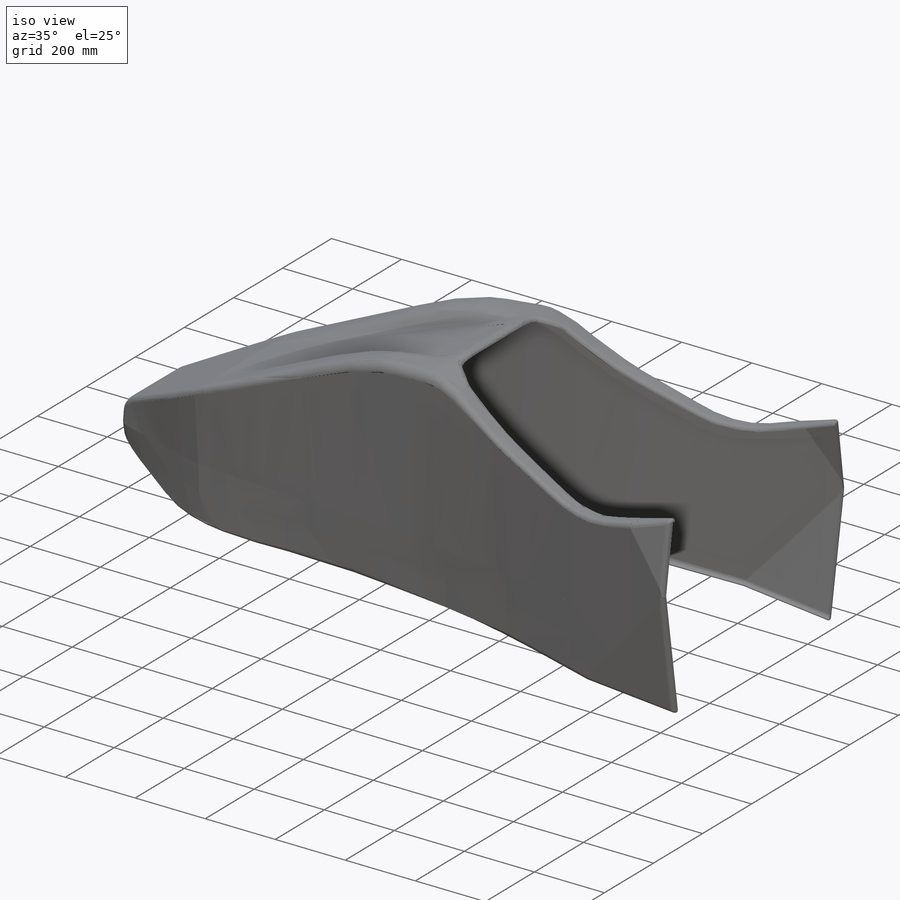
[diagram: iso view]
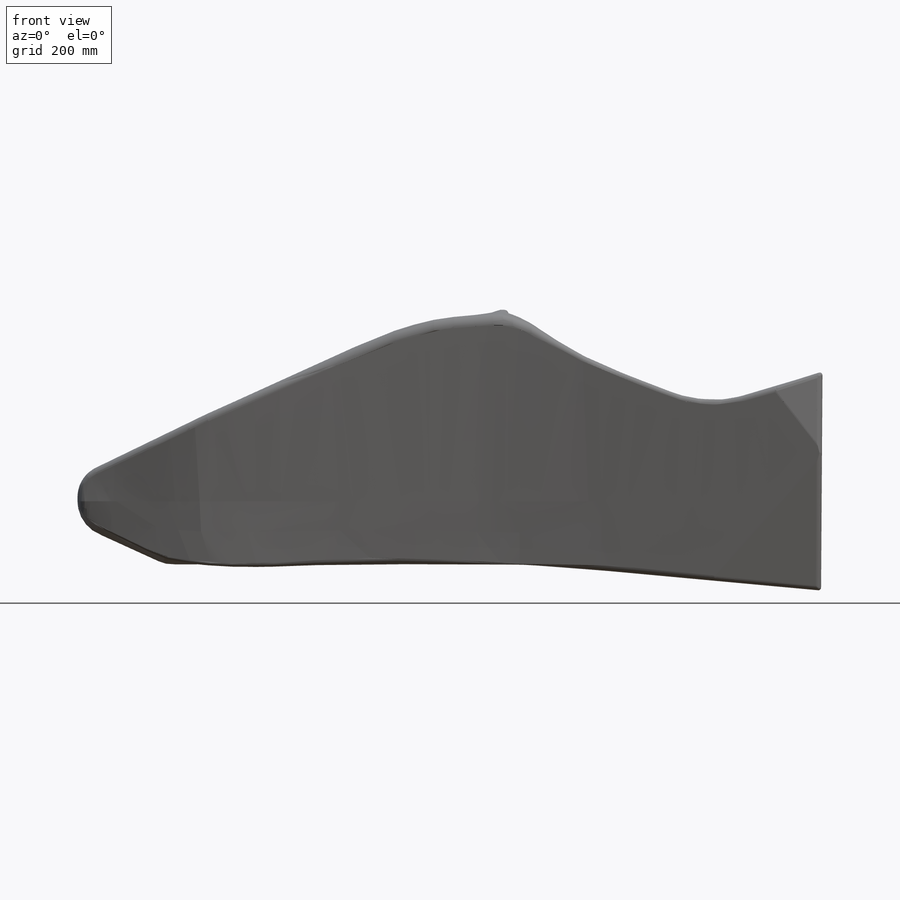
[diagram: front view]
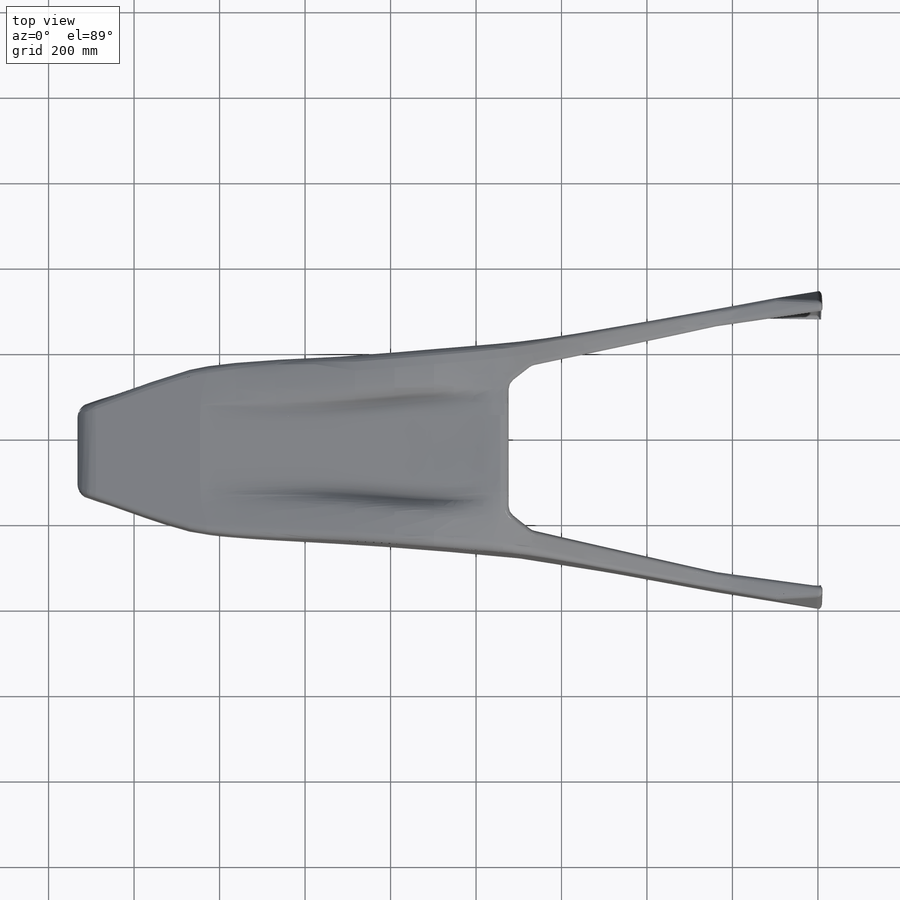
[diagram: top view]
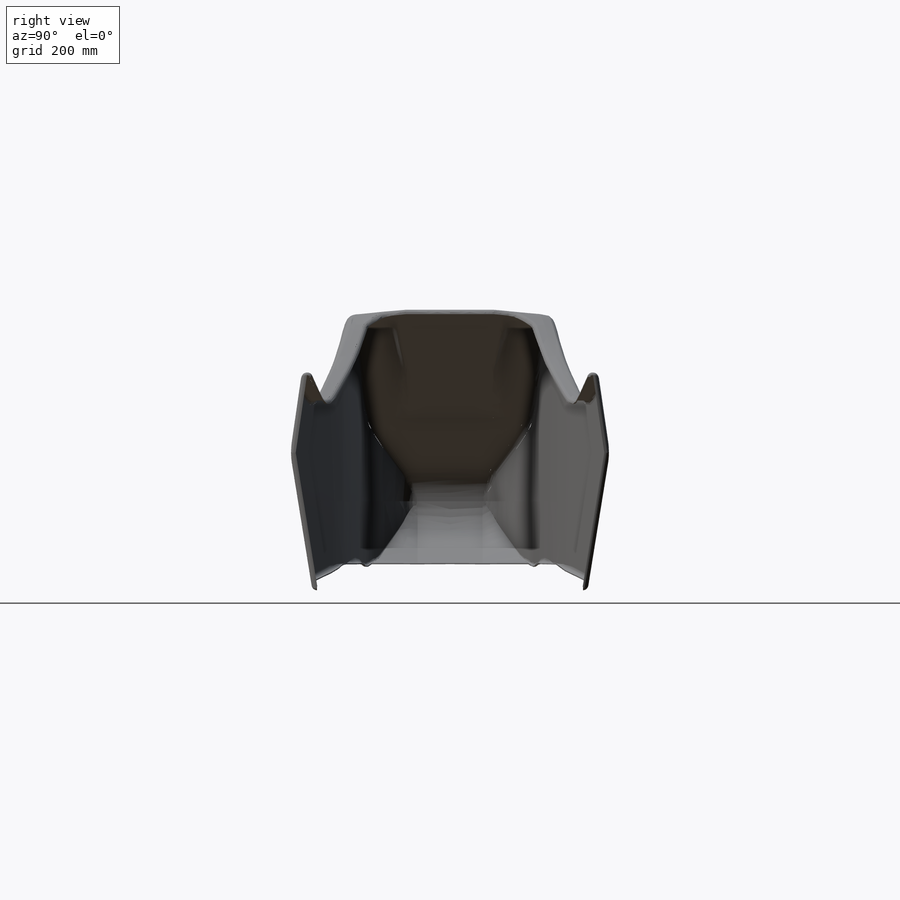
[diagram: right view]
SOLIDWORKS PART (.sldprt)
format: sldprt  version: not decoded by parser v0  size: 4,767,232 bytes
history: native  units: mm
features: sketch x29, plane x25, fillet x7, cut_extrude x5, mirror x2, material x1, shell x1 (+11 scaffold rows collapsed)
feature tree (81):
  scaffold x11  (default folders/planes/origin — collapsed)
  material  "Thornel Mat VMA"
  plane  "Plane1"
  plane  "Plane2"  Offset=152.4mm
  plane  "Plane3"  Offset=320.04mm
  plane  "Plane4"  Offset=546.1mm
  plane  "Plane5"  Offset=698.5mm
  plane  "Plane6"  Offset=1181.1mm
  plane  "Plane7"  Offset=1447.8mm
  plane  "Plane8"  Offset=304.8mm
  sketch  "Sketch1"  dims[c1.D1=25.4mm c1.D2=25.4mm c2.D2=~0.137934deg c3.D2=~25.400074mm c4.D2=~0.137934deg c5.D2=342.9mm c6.D2=~0.137934deg c6.D3=381.0mm c7.D2=342.9mm c8.D2=~0.137934deg c9.D2=190.5mm c9.D3=381.0mm c9.D4=~341.586812mm]
  plane  "Plane9"
  plane  "Plane10"  Offset=76.2mm
  plane  "Plane11"  Offset=76.2mm
  plane  "Plane14"
  plane  "Plane15"
  sketch  "Sketch3"  dims[c1.D5=71.12mm c1.D6=129.54mm c1.D7=38.1mm c2.D5=43.18mm c2.D8=38.1mm c2.D11=863.6mm c2.D12=17.78mm c2.D13=17.78mm c2.D16=35.56mm c2.D17=12.7mm c2.D1=1.5875mm c2.D2=1.5875mm c2.D3=1.5875mm c2.D4=1.5875mm c2.D9=1.5875mm c2.D10=1.5875mm c2.D14=~8.519862mm c3.D14=90.0deg c4.D14=1.5875mm c4.D15=~1.851675mm c5.D15=90.0deg c6.D15=1.5875mm]
  sketch  "Sketch4"  dims[c1.D5=71.12mm c1.D6=129.54mm c1.D7=38.1mm c2.D5=43.18mm c2.D8=38.1mm c2.D11=863.6mm c2.D12=17.78mm c2.D13=17.78mm c2.D16=35.56mm c2.D17=12.7mm c2.D1=1.5875mm c2.D2=1.5875mm c2.D3=1.5875mm c2.D4=1.5875mm c2.D9=1.5875mm c2.D10=1.5875mm c2.D14=~8.519862mm c3.D14=90.0deg c4.D14=1.5875mm c4.D15=~1.851675mm c5.D15=90.0deg c6.D15=1.5875mm]
  sketch  "Sketch9"  dims[c1.D5=71.12mm c1.D6=129.54mm c1.D7=38.1mm c2.D5=43.18mm c2.D8=38.1mm c2.D11=863.6mm c2.D12=17.78mm c2.D13=17.78mm c2.D16=35.56mm c2.D17=12.7mm c2.D1=1.5875mm c2.D2=1.5875mm c2.D3=1.5875mm c2.D4=1.5875mm c2.D9=1.5875mm c2.D10=1.5875mm c2.D14=~8.519862mm c3.D14=90.0deg c4.D14=1.5875mm c4.D15=~1.851675mm c5.D15=90.0deg c6.D15=1.5875mm]
  sketch  "Sketch5"  dims[c1.D5=71.12mm c1.D6=129.54mm c1.D7=38.1mm c2.D5=43.18mm c2.D8=38.1mm c2.D11=863.6mm c2.D12=17.78mm c2.D13=17.78mm c2.D16=35.56mm c2.D17=12.7mm c2.D1=83.82mm c2.D2=76.2mm c3.D1=1.5875mm c3.D2=1.5875mm c3.D3=1.5875mm c3.D4=1.5875mm c3.D9=1.5875mm c3.D10=1.5875mm c3.D14=~8.519862mm c4.D14=90.0deg c5.D14=1.5875mm c5.D15=~1.851675mm c6.D15=90.0deg c7.D15=1.5875mm]
  sketch  "Sketch11"  dims[c1.D5=71.12mm c1.D6=129.54mm c1.D7=38.1mm c2.D5=43.18mm c2.D8=38.1mm c2.D11=863.6mm c2.D12=17.78mm c2.D13=17.78mm c2.D16=35.56mm c2.D17=12.7mm c2.D1=1.5875mm c2.D2=1.5875mm c2.D3=1.5875mm c2.D4=1.5875mm c2.D9=1.5875mm c2.D10=1.5875mm c2.D14=~8.519862mm c3.D14=90.0deg c4.D14=1.5875mm c4.D15=~1.851675mm c5.D15=90.0deg c6.D15=1.5875mm]
  sketch  "Sketch6"  dims[D5=2748.28mm D6=12.7mm D7=76.2mm D8=55.88mm D9=93.98mm D1=1.5875mm D2=1.5875mm D3=1.5875mm D4=1.5875mm]
  sketch  "Sketch7"  dims[c1.D4=2.54mm c1.D3=2.54mm c2.D4=2.54mm c2.D5=6.35mm c2.D6=6.35mm c2.D7=6.35mm c3.D4=6.35mm c3.D5=6.35mm c3.D6=7.62mm c3.D1=1.5875mm c3.D2=1.5875mm c3.D3=1.5875mm c4.D1=1.5875mm c4.D2=1.5875mm c4.D3=1.5875mm c4.D4=6.35mm c4.D5=194.31mm]
  plane  "Plane17"
  sketch  "Sketch13"
  sketch  "Sketch15"  dims[c1.D2=50.8mm c1.D1=25.4mm c1.D3=25.4mm c1.D4=12.7mm c2.D1=25.4mm]
  sketch  "Sketch16"  dims[c1.D2=50.8mm c1.D1=12.7mm c1.D3=25.4mm c1.D4=12.7mm c2.D3=25.4mm c2.D1=25.4mm c2.D5=~454.641031mm c3.D5=~148.540497deg c4.D5=508.0mm]
  sketch  "Sketch17"  dims[c1.D2=50.8mm c1.D1=25.4mm c1.D3=25.4mm c1.D4=12.7mm c2.D3=25.4mm c2.D1=101.6mm c2.D2=101.6mm c3.D3=93.98mm c3.D5=93.98mm c3.D2=25.4mm c4.D5=25.4mm c4.D6=~7.944681mm c4.D7=381.0mm c4.D1=25.4mm c5.D5=~454.641031mm c6.D5=~148.540497deg c7.D5=508.0mm c7.D2=12.7mm c8.D5=25.4mm]
  sketch  "Sketch18"  dims[c1.D2=50.8mm c1.D1=25.4mm c1.D3=25.4mm c1.D4=12.7mm c2.D3=25.4mm c2.D1=101.6mm c2.D2=101.6mm c3.D3=93.98mm c3.D5=93.98mm c3.D1=12.7mm c3.D2=12.7mm c4.D1=25.4mm c4.D5=~454.641031mm c5.D5=~148.540497deg c6.D5=508.0mm]
  plane  "Plane18"  Offset=927.1mm
  sketch  "Sketch19"  dims[c1.D2=50.8mm c1.D1=25.4mm c1.D3=25.4mm c1.D4=12.7mm c2.D3=25.4mm c2.D1=101.6mm c2.D2=101.6mm c3.D3=93.98mm c3.D5=93.98mm c3.D1=12.7mm c3.D2=12.7mm c4.D1=25.4mm c4.D5=~454.641031mm c5.D5=~148.540497deg c6.D5=508.0mm]
  sketch  "Sketch20"  dims[c1.D4=2.54mm c1.D3=2.54mm c2.D4=2.54mm c2.D5=6.35mm c2.D6=6.35mm c2.D7=6.35mm c2.D1=1.5875mm c2.D2=1.5875mm c2.D3=1.5875mm c3.D1=1.5875mm c3.D2=1.5875mm c3.D3=1.5875mm c3.D4=6.35mm c3.D8=~202.337284mm]
  sketch  "Sketch21"  dims[D5=2748.28mm D6=12.7mm D7=76.2mm D8=55.88mm D9=93.98mm D1=1.5875mm D2=1.5875mm D3=1.5875mm D4=1.5875mm]
  plane  "Plane19"  Offset=127mm
  sketch  "Sketch22"  dims[c1.D4=2.54mm c1.D3=2.54mm c2.D4=2.54mm c2.D5=6.35mm c2.D6=6.35mm c2.D7=6.35mm c3.D4=12.7mm c3.D1=1.5875mm c3.D2=1.5875mm c3.D3=1.5875mm c4.D1=1.5875mm c4.D2=1.5875mm c4.D3=1.5875mm c4.D4=6.35mm]
  plane  "Plane20"
  sketch  "Sketch24"  dims[c1.D2=50.8mm c1.D1=25.4mm c1.D3=25.4mm c1.D4=12.7mm c2.D3=25.4mm c2.D1=101.6mm c2.D2=101.6mm c3.D3=93.98mm c3.D5=93.98mm c3.D1=12.7mm c3.D2=12.7mm c4.D1=25.4mm c4.D5=~454.641031mm c5.D5=~148.540497deg c6.D5=508.0mm]
  plane  "Plane21"
  sketch  "Sketch26"  dims[c1.D4=2.54mm c1.D3=2.54mm c2.D4=2.54mm c2.D5=6.35mm c2.D6=6.35mm c2.D7=6.35mm c3.D4=38.1mm c3.D5=48.26mm c3.D6=48.26mm c4.D4=48.26mm c4.D6=25.4mm c5.D4=10.16mm c5.D5=25.4mm c6.D4=76.2mm c6.D6=76.2mm c7.D4=25.4mm c7.D5=25.4mm c7.D1=1.5875mm c7.D2=1.5875mm c7.D3=1.5875mm c8.D1=1.5875mm c8.D2=1.5875mm c8.D3=1.5875mm c8.D4=6.35mm c8.D8=~202.337284mm c9.D4=~3.405176mm]
  sketch  "Sketch29"  dims[c1.D5=71.12mm c1.D6=129.54mm c1.D7=38.1mm c2.D5=43.18mm c2.D8=38.1mm c2.D11=863.6mm c2.D12=17.78mm c2.D13=17.78mm c2.D16=35.56mm c2.D17=12.7mm c2.D3=25.4mm c2.D4=25.4mm c2.D6=132.08mm c3.D3=~157.236806mm c3.D4=~157.236806mm c4.D3=254.0mm c4.D4=254.0mm c4.D1=1.5875mm c4.D2=1.5875mm c5.D3=1.5875mm c5.D4=1.5875mm c5.D9=1.5875mm c5.D10=1.5875mm c5.D14=~8.519862mm c6.D14=90.0deg c7.D14=1.5875mm c7.D15=~1.851675mm c8.D15=90.0deg c9.D15=1.5875mm]
  mirror  "Mirror1"
  plane  "Plane22"  Offset=218.44mm
  sketch  "Sketch30"
  cut_extrude  "Cut-Extrude1"  Depth=525.018mm
  fillet  "Fillet1"  Radius=76.2mm
  fillet  "Fillet2"  Radius=17.78mm
  sketch  "Sketch31"
  cut_extrude  "Cut-Extrude2"  Depth=525.018mm
  fillet  "Fillet7"  Radius=12.7mm
  plane  "Plane23"  Offset=218.44mm
  sketch  "Sketch32"
  cut_extrude  "Cut-Extrude3"  [1 undecoded]
  mirror  "Mirror2"
  fillet  "Fillet12"  Radius=0.0508mm
  sketch  "Sketch34"  dims[D2=27.94mm D1=5.08mm]
  cut_extrude  "Cut-Extrude5"  Depth=271.018mm
  fillet  "Fillet13"  Radius=10.16mm
  sketch  "Sketch35"  dims[D1=88.9mm]
  sketch  "Sketch36"
  plane  "Plane24"  Offset=218.44mm
  sketch  "Sketch39"
  plane  "Plane26"  Offset=100mm
  sketch  "Sketch40"
  plane  "Plane27"  Offset=304.8mm
  fillet  "Fillet14"  Radius=6.35mm
  fillet  "Fillet15"  Radius=6.35mm
  shell  "Shell1"  Thickness=2.54mm
  plane  "Plane28"  Offset=508mm
  sketch  "Sketch46"  dims[D1=279.4mm]
  cut_extrude  "Cut-Extrude20"  Depth=101.6mm
  plane  "Mid Plane"
decode coverage: 34 of 44 modeling features carry decoded parameters
note: ~ marks probable driven/reference dimensions
note: 1 parameter value undecoded
note: suppression state not decoded; provenance and decode notes live in map.json
